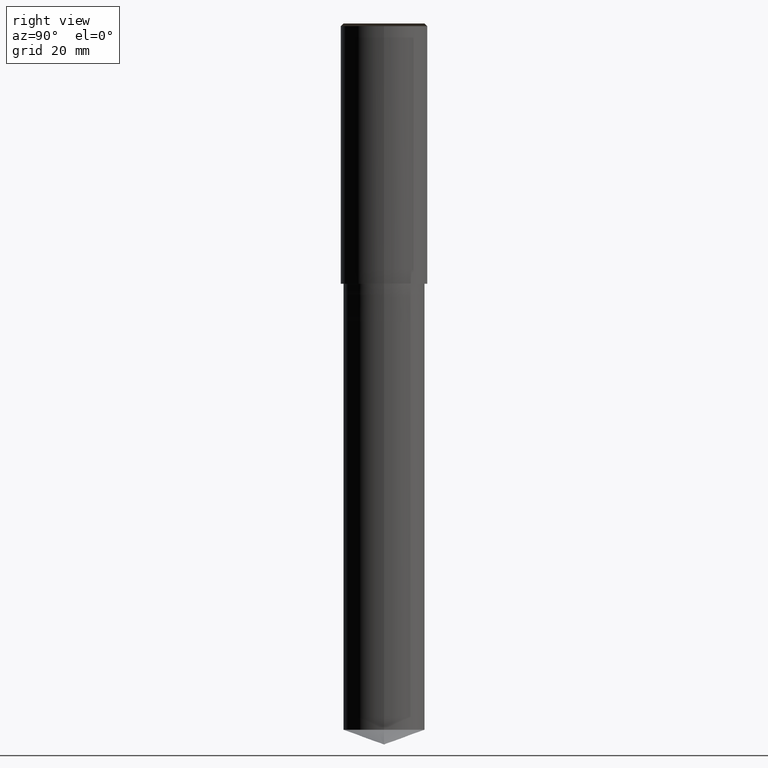
[diagram: clean part render]
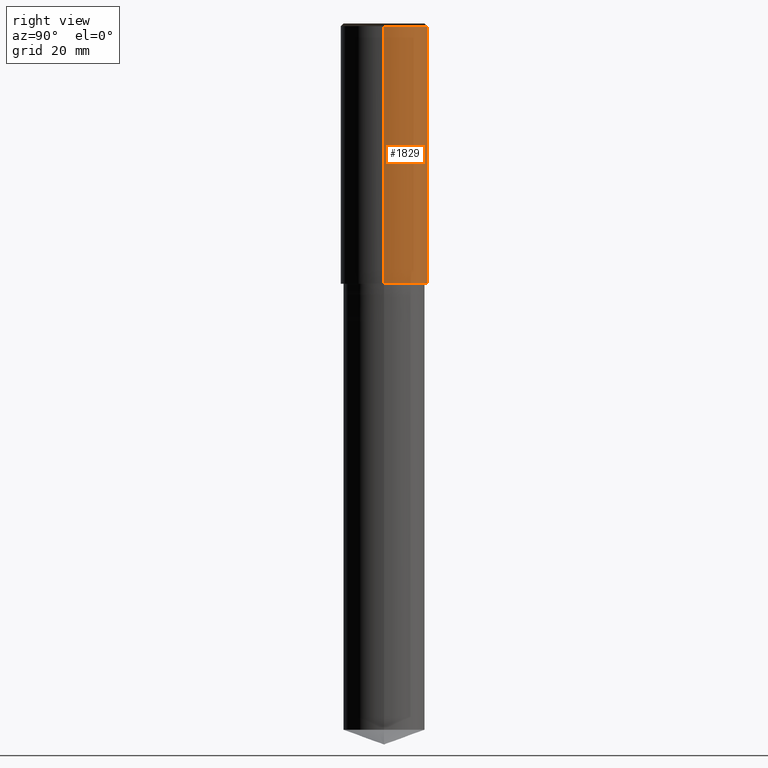
[diagram: same view with one face highlighted and labeled with its STEP entity id]
A machine part, right view. The second image highlights one B-rep face of the part: STEP entity #1829.
In plain terms, the highlighted face is a freeform B-spline surface patch.
Its self-contained STEP definition (entity closure, byte-faithful):
#1590=CARTESIAN_POINT('',(8.0,0.0,0.0));
#1591=CARTESIAN_POINT('',(8.0,8.0,0.0));
#1592=CARTESIAN_POINT('',(0.0,8.0,0.0));
#1593=CARTESIAN_POINT('',(-8.0,8.0,0.0));
#1594=CARTESIAN_POINT('',(-8.0,0.0,0.0));
#1595=CARTESIAN_POINT('',(8.0,0.0,47.5));
#1596=CARTESIAN_POINT('',(8.0,8.0,47.5));
#1597=CARTESIAN_POINT('',(0.0,8.0,47.5));
#1598=CARTESIAN_POINT('',(-8.0,8.0,47.5));
#1599=CARTESIAN_POINT('',(-8.0,0.0,47.5));
#1810=(
BOUNDED_SURFACE()
B_SPLINE_SURFACE(1,2,(
(#1590,#1591,#1592,#1593,#1594),
(#1595,#1596,#1597,#1598,#1599)
), .UNSPECIFIED.,.F.,.F.,.F.)
B_SPLINE_SURFACE_WITH_KNOTS((2,2),(3,2,3),(
0.0,1.0),(
0.0,0.5,1.0), .UNSPECIFIED.)
GEOMETRIC_REPRESENTATION_ITEM()
RATIONAL_B_SPLINE_SURFACE(((1.0,0.707106781187,1.0,0.707106781187,1.0),
(1.0,0.707106781187,1.0,0.707106781187,1.0)
))
REPRESENTATION_ITEM('')
SURFACE()
);
#1811=(
BOUNDED_CURVE()
B_SPLINE_CURVE(2,(#1594,#1593,#1592,#1591,#1590),.UNSPECIFIED.,.F.,.F.)
B_SPLINE_CURVE_WITH_KNOTS((3,2,3),
(0.0,0.5,1.0),.UNSPECIFIED.)
CURVE()
GEOMETRIC_REPRESENTATION_ITEM()
RATIONAL_B_SPLINE_CURVE((1.0,0.707106781187,1.0,0.707106781187,1.0))
REPRESENTATION_ITEM('')
);
#1812=(
BOUNDED_CURVE()
B_SPLINE_CURVE(1,(#1590,#1595),.UNSPECIFIED.,.F.,.F.)
B_SPLINE_CURVE_WITH_KNOTS((2,2),
(0.0,1.0),.UNSPECIFIED.)
CURVE()
GEOMETRIC_REPRESENTATION_ITEM()
RATIONAL_B_SPLINE_CURVE((1.0,1.0))
REPRESENTATION_ITEM('')
);
#1813=(
BOUNDED_CURVE()
B_SPLINE_CURVE(2,(#1595,#1596,#1597,#1598,#1599),.UNSPECIFIED.,.F.,.F.)
B_SPLINE_CURVE_WITH_KNOTS((3,2,3),
(0.0,0.5,1.0),.UNSPECIFIED.)
CURVE()
GEOMETRIC_REPRESENTATION_ITEM()
RATIONAL_B_SPLINE_CURVE((1.0,0.707106781187,1.0,0.707106781187,1.0))
REPRESENTATION_ITEM('')
);
#1814=(
BOUNDED_CURVE()
B_SPLINE_CURVE(1,(#1599,#1594),.UNSPECIFIED.,.F.,.F.)
B_SPLINE_CURVE_WITH_KNOTS((2,2),
(0.0,1.0),.UNSPECIFIED.)
CURVE()
GEOMETRIC_REPRESENTATION_ITEM()
RATIONAL_B_SPLINE_CURVE((1.0,1.0))
REPRESENTATION_ITEM('')
);
#1815=VERTEX_POINT('',#1590);
#1816=VERTEX_POINT('',#1594);
#1817=VERTEX_POINT('',#1595);
#1818=VERTEX_POINT('',#1599);
#1819=EDGE_CURVE('',#1816,#1815,#1811,.T.);
#1820=EDGE_CURVE('',#1815,#1817,#1812,.T.);
#1821=EDGE_CURVE('',#1817,#1818,#1813,.T.);
#1822=EDGE_CURVE('',#1818,#1816,#1814,.T.);
#1823=ORIENTED_EDGE('',*,*,#1819,.T.);
#1824=ORIENTED_EDGE('',*,*,#1820,.T.);
#1825=ORIENTED_EDGE('',*,*,#1821,.T.);
#1826=ORIENTED_EDGE('',*,*,#1822,.T.);
#1827=EDGE_LOOP('',(#1823,#1824,#1825,#1826));
#1828=FACE_OUTER_BOUND('',#1827,.T.);
#1829=ADVANCED_FACE('',(#1828),#1810,.T.);